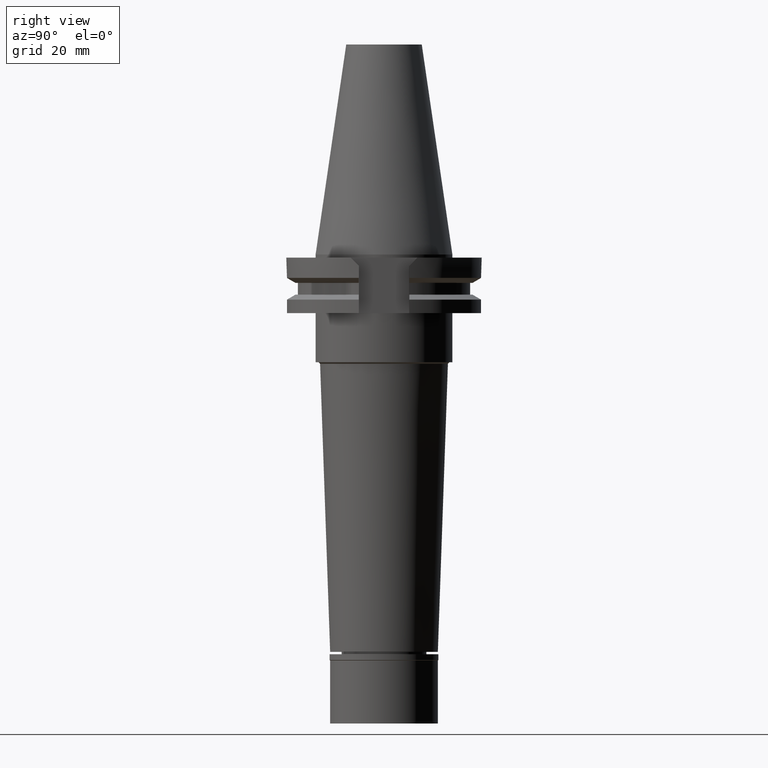
[diagram: clean part render]
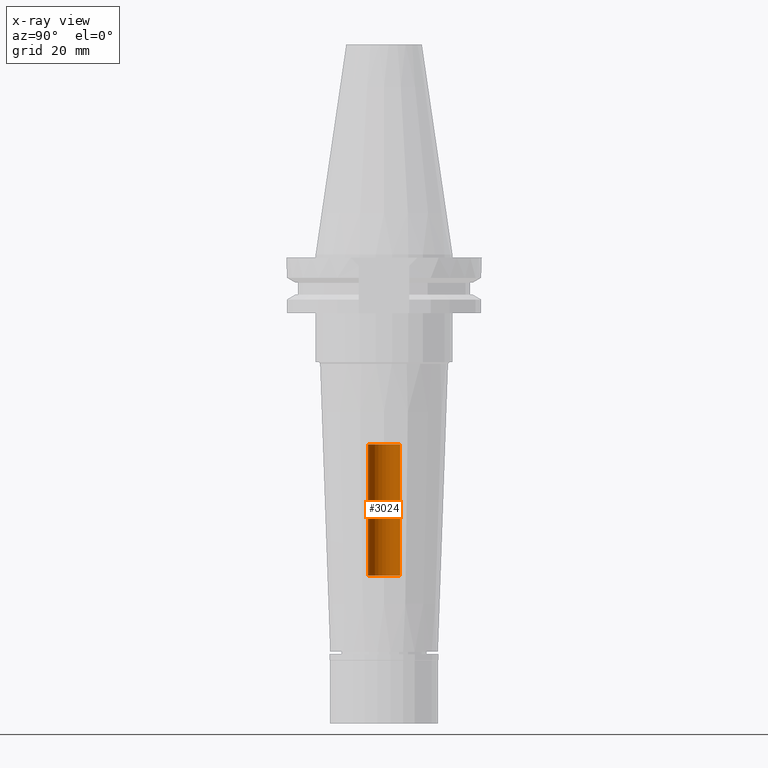
[diagram: x-ray — body ghosted, one internal face saturated and labeled with its STEP entity id]
A machine part, right view, then the same camera in x-ray: the body is ghosted and one INTERNAL B-rep face — a face not visible from any outside direction — is saturated and labeled: STEP entity #3024.
In plain terms, the highlighted cylindrical surface (edge-blend (fillet) strip) has radius 5.2 mm, axis along (0, 0, -1).
Its self-contained STEP definition (entity closure, byte-faithful):
#16 = CARTESIAN_POINT ( 'NONE',  ( 0.0000000000000000000, -5.200000000000000178, -61.75000000000000000 ) ) ;
#26 = DIRECTION ( 'NONE',  ( 0.0000000000000000000, 0.0000000000000000000, 1.000000000000000000 ) ) ;
#38 = CIRCLE ( 'NONE', #914, 5.200000000000000178 ) ;
#183 = EDGE_CURVE ( 'NONE', #2395, #3371, #3152, .T. ) ;
#202 = ORIENTED_EDGE ( 'NONE', *, *, #2071, .T. ) ;
#258 = EDGE_LOOP ( 'NONE', ( #2778, #1837, #360, #202 ) ) ;
#360 = ORIENTED_EDGE ( 'NONE', *, *, #1123, .T. ) ;
#383 = DIRECTION ( 'NONE',  ( 0.0000000000000000000, 1.000000000000000000, 0.0000000000000000000 ) ) ;
#575 = DIRECTION ( 'NONE',  ( 0.0000000000000000000, 0.0000000000000000000, 1.000000000000000000 ) ) ;
#914 = AXIS2_PLACEMENT_3D ( 'NONE', #2278, #1190, #383 ) ;
#926 = DIRECTION ( 'NONE',  ( 0.0000000000000000000, -1.000000000000000000, 0.0000000000000000000 ) ) ;
#947 = DIRECTION ( 'NONE',  ( 0.0000000000000000000, 0.0000000000000000000, -1.000000000000000000 ) ) ;
#1015 = CIRCLE ( 'NONE', #2220, 5.200000000000000178 ) ;
#1123 = EDGE_CURVE ( 'NONE', #2395, #3038, #1015, .T. ) ;
#1190 = DIRECTION ( 'NONE',  ( 0.0000000000000000000, 0.0000000000000000000, 1.000000000000000000 ) ) ;
#1213 = DIRECTION ( 'NONE',  ( 0.0000000000000000000, 0.0000000000000000000, -1.000000000000000000 ) ) ;
#1350 = LINE ( 'NONE', #2889, #3245 ) ;
#1404 = VECTOR ( 'NONE', #26, 1000.000000000000000 ) ;
#1443 = CYLINDRICAL_SURFACE ( 'NONE', #2434, 5.200000000000000178 ) ;
#1677 = CARTESIAN_POINT ( 'NONE',  ( 0.0000000000000000000, 2.191474830903999739E-14, 78.94750000000000512 ) ) ;
#1837 = ORIENTED_EDGE ( 'NONE', *, *, #183, .F. ) ;
#1877 = CARTESIAN_POINT ( 'NONE',  ( 0.0000000000000000000, -5.200000000000000178, -104.4000000000000057 ) ) ;
#2019 = CARTESIAN_POINT ( 'NONE',  ( 0.0000000000000000000, 5.200000000000000178, -104.4000000000000057 ) ) ;
#2036 = VERTEX_POINT ( 'NONE', #2169 ) ;
#2071 = EDGE_CURVE ( 'NONE', #3038, #2036, #1350, .T. ) ;
#2169 = CARTESIAN_POINT ( 'NONE',  ( 0.0000000000000000000, 5.200000000000000178, -61.75000000000000000 ) ) ;
#2220 = AXIS2_PLACEMENT_3D ( 'NONE', #3256, #1213, #926 ) ;
#2278 = CARTESIAN_POINT ( 'NONE',  ( 0.0000000000000000000, 2.191474830903999739E-14, -61.75000000000000000 ) ) ;
#2395 = VERTEX_POINT ( 'NONE', #2657 ) ;
#2434 = AXIS2_PLACEMENT_3D ( 'NONE', #1677, #947, #2695 ) ;
#2657 = CARTESIAN_POINT ( 'NONE',  ( 0.0000000000000000000, -5.200000000000000178, -104.4000000000000057 ) ) ;
#2664 = EDGE_CURVE ( 'NONE', #2036, #3371, #38, .T. ) ;
#2695 = DIRECTION ( 'NONE',  ( 0.0000000000000000000, -1.000000000000000000, 0.0000000000000000000 ) ) ;
#2778 = ORIENTED_EDGE ( 'NONE', *, *, #2664, .T. ) ;
#2889 = CARTESIAN_POINT ( 'NONE',  ( 0.0000000000000000000, 5.200000000000000178, -104.4000000000000057 ) ) ;
#2964 = FACE_OUTER_BOUND ( 'NONE', #258, .T. ) ;
#3024 = ADVANCED_FACE ( 'NONE', ( #2964 ), #1443, .F. ) ;
#3038 = VERTEX_POINT ( 'NONE', #2019 ) ;
#3152 = LINE ( 'NONE', #1877, #1404 ) ;
#3245 = VECTOR ( 'NONE', #575, 1000.000000000000000 ) ;
#3256 = CARTESIAN_POINT ( 'NONE',  ( 0.0000000000000000000, 2.191474830903999739E-14, -104.4000000000000057 ) ) ;
#3371 = VERTEX_POINT ( 'NONE', #16 ) ;